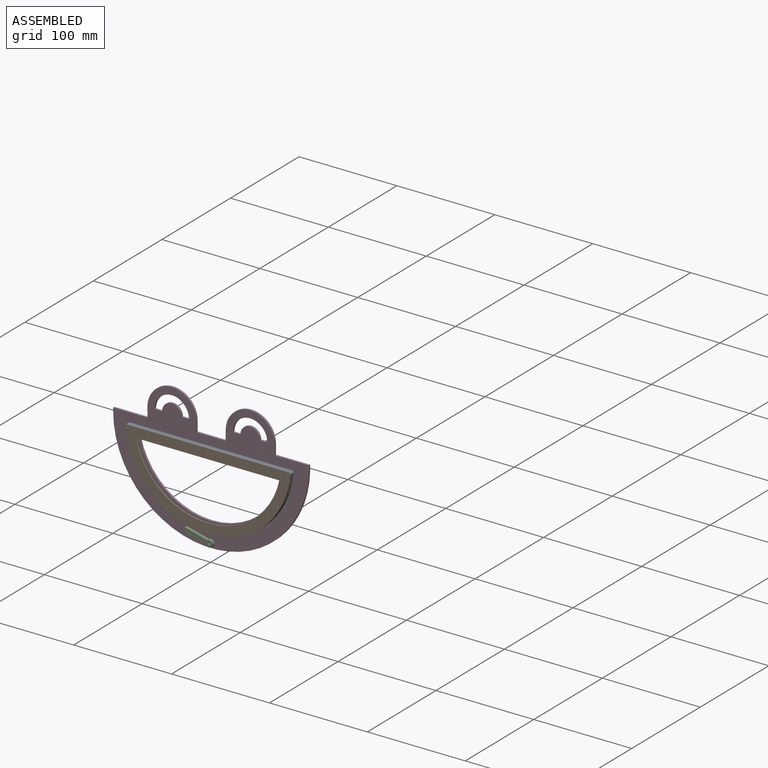
[diagram: assembled view]
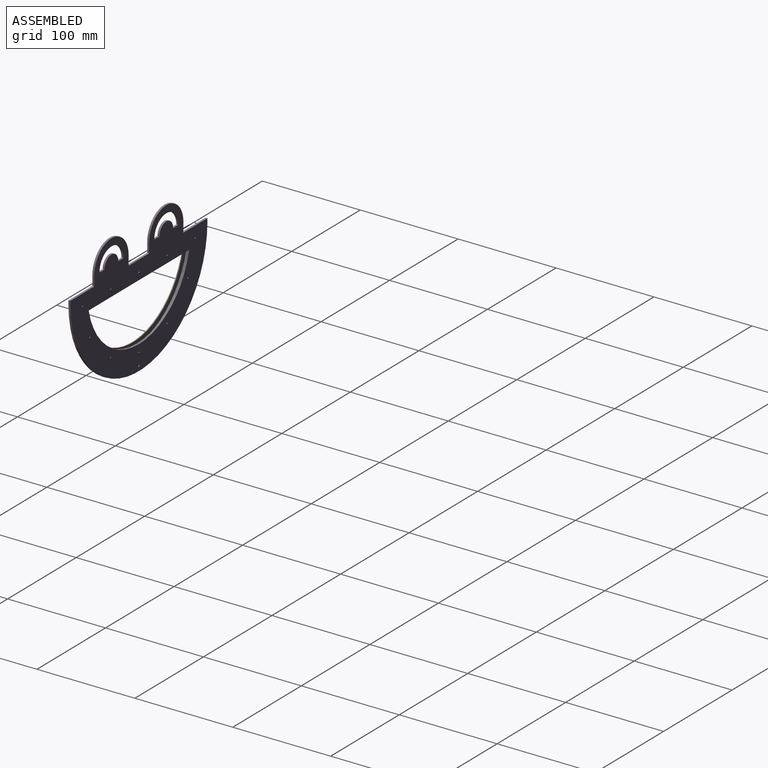
[diagram: assembled view, second angle]
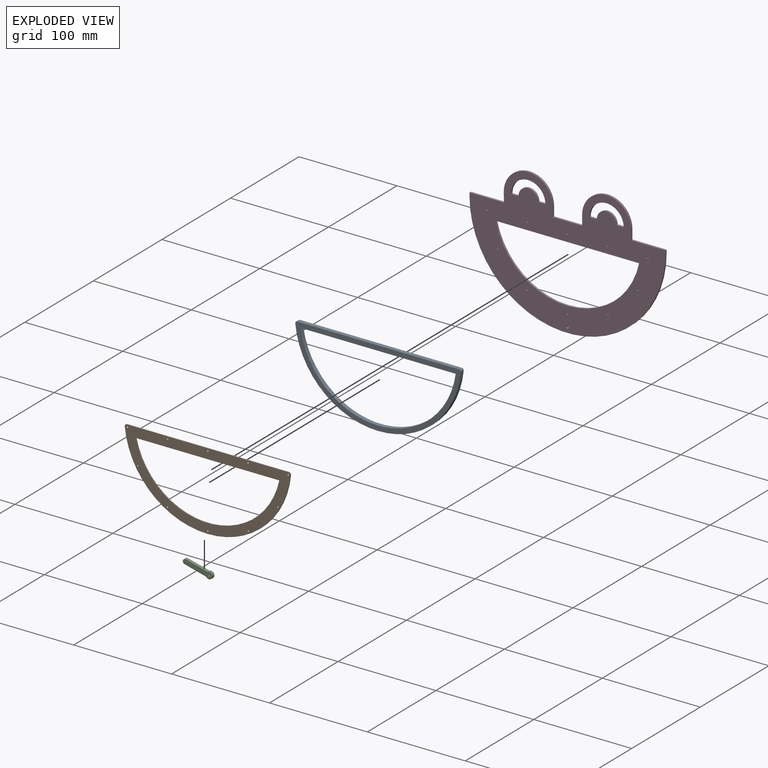
[diagram: exploded view]
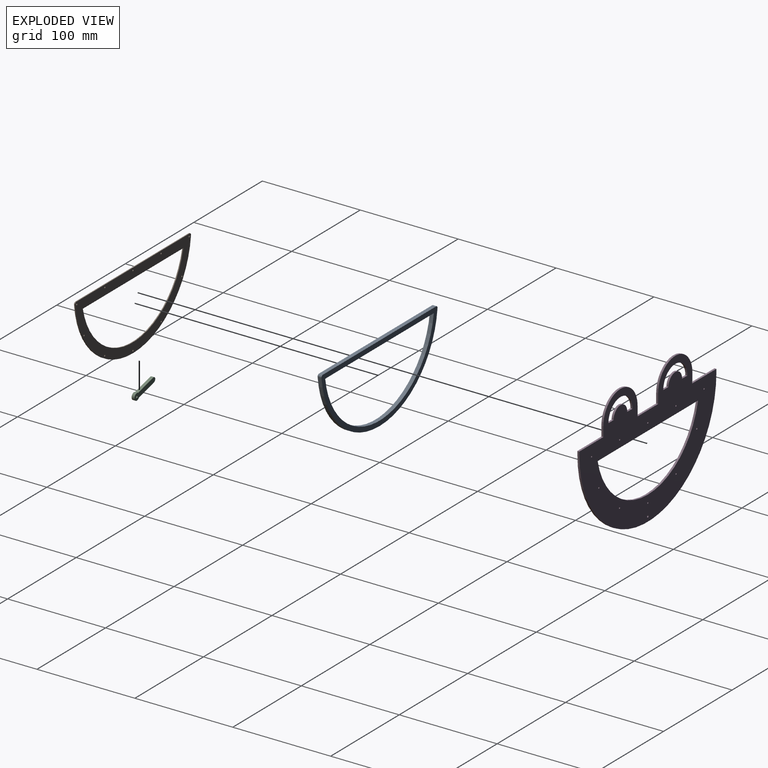
[diagram: exploded view, second angle]
ASSEMBLY  parts=4 mates=6
PART A: 8 faces, bbox 169.2x4x79 mm
  f0: plane 165.23x4mm, normal (0,0,1), area 660.9mm2, adj f4,f5,f6,f7
  f1: cylinder r=80mm len=158.48mm, axis (0,1,0), area 917mm2, adj f2,f4,f5
  f2: plane 158.48x4mm, normal (0,0,-1), area 633.9mm2, adj f1,f4,f5
  f3: cylinder r=85mm len=169.21mm, axis (0,1,0), area 1002.5mm2, adj f4,f5,f6,f7
  f4: plane 169.23x79mm, normal (0,-1,0), area 2029.1mm2, adj f0,f1,f2,f3,f6,f7
  f5: plane 169.23x79mm, normal (0,1,0), area 2029.1mm2, adj f0,f1,f2,f3,f6,f7
  f6: cylinder r=2mm len=4mm, axis (0,1,0), area 13.3mm2, adj f0,f3,f4,f5
  f7: cylinder r=2mm len=4mm, axis (0,1,0), area 13.3mm2, adj f0,f3,f4,f5
PART B: 18 faces, bbox 169.2x1x79 mm
  f0: plane 146.55x1mm, normal (0,0,-1), area 146.5mm2, adj f3,f4,f5
  f1: plane 165.23x1mm, normal (0,0,1), area 165.2mm2, adj f4,f5,f16,f17
  f2: cylinder r=85mm len=169.21mm, axis (0,1,0), area 250.6mm2, adj f4,f5,f16,f17
  f3: cylinder r=75mm len=146.55mm, axis (0,1,0), area 203.4mm2, adj f0,f4,f5
  f4: plane 169.23x79mm, normal (0,-1,0), area 3853.6mm2, adj f0,f1,f2,f3,f6,f7,f8,f9
  f5: plane 169.23x79mm, normal (0,1,0), area 3853.6mm2, adj f0,f1,f2,f3,f6,f7,f8,f9
  f6: cylinder r=0.8mm len=1.6mm, axis (0,-1,0), area 5mm2, adj f4,f5
  f7: cylinder r=0.8mm len=1.6mm, axis (0,-1,0), area 5mm2, adj f4,f5
  f8: cylinder r=0.8mm len=1.6mm, axis (0,-1,0), area 5mm2, adj f4,f5
  f9: cylinder r=0.8mm len=1.6mm, axis (0,-1,0), area 5mm2, adj f4,f5
  f10: cylinder r=0.8mm len=1.6mm, axis (0,-1,0), area 5mm2, adj f4,f5
  f11: cylinder r=0.8mm len=1.6mm, axis (0,-1,0), area 5mm2, adj f4,f5
  f12: cylinder r=0.8mm len=1.6mm, axis (0,-1,0), area 5mm2, adj f4,f5
  f13: cylinder r=0.8mm len=1.6mm, axis (0,-1,0), area 5mm2, adj f4,f5
  f14: cylinder r=0.8mm len=1.6mm, axis (0,-1,0), area 5mm2, adj f4,f5
  f15: cylinder r=0.8mm len=1.6mm, axis (0,-1,0), area 5mm2, adj f4,f5
  f16: cylinder r=2mm len=2.19mm, axis (0,1,0), area 3.3mm2, adj f1,f2,f4,f5
  f17: cylinder r=2mm len=2.19mm, axis (0,1,0), area 3.3mm2, adj f1,f2,f4,f5
PART C: 7 faces, bbox 30.2x3x12.2 mm
  f0: plane 21.84x5.61mm, normal (0.25,0,0.97), area 67.7mm2, adj f1,f3,f5,f6
  f1: cylinder r=2.5mm len=4.92mm, axis (0,1,0), area 23.6mm2, adj f0,f2,f5,f6
  f2: plane 21.84x5.61mm, normal (-0.25,0,-0.97), area 67.7mm2, adj f1,f3,f5,f6
  f3: cylinder r=3.5mm len=7mm, axis (0,1,0), area 49.3mm2, adj f0,f2,f5,f6
  f4: cylinder r=1mm len=3mm, axis (0,1,0), area 18.8mm2, adj f5,f6
  f5: plane 30.22x12.21mm, normal (0,-1,0), area 154.3mm2, adj f0,f1,f2,f3,f4
  f6: plane 30.22x12.21mm, normal (0,1,0), area 154.3mm2, adj f0,f1,f2,f3,f4
PART D: 35 faces, bbox 200x2x138 mm
  f0: plane 10x2mm, normal (1,0,0), area 20mm2, adj f1,f21,f22,f23
  f1: cylinder r=25mm len=50mm, axis (0,1,0), area 157.1mm2, adj f0,f2,f22,f23
  f2: plane 10x2mm, normal (-1,0,-0.02), area 20mm2, adj f1,f3,f22,f23
  f3: plane 35.2x2mm, normal (0,0,1), area 70.4mm2, adj f2,f4,f22,f23
  f4: plane 3x2mm, normal (-1,0,0), area 6mm2, adj f3,f5,f22,f23
  f5: cylinder r=100mm len=200mm, axis (0,1,0), area 628.3mm2, adj f4,f6,f22,f23
  f6: plane 3x2mm, normal (1,0,0), area 6mm2, adj f5,f7,f22,f23
  f7: plane 35x2mm, normal (0,0,1), area 70mm2, adj f6,f8,f22,f23
  f8: plane 10x2mm, normal (1,0,0), area 20mm2, adj f7,f9,f22,f23
  f9: cylinder r=25mm len=50mm, axis (0,1,0), area 157.1mm2, adj f8,f10,f22,f23
  f10: plane 10x2mm, normal (-1,0,0), area 20mm2, adj f9,f21,f22,f23
  f11: plane 7.5x2mm, normal (0,0,1), area 15mm2, adj f12,f18,f22,f23
  f12: cylinder r=17.5mm len=35mm, axis (0,1,0), area 110mm2, adj f11,f13,f22,f23
  f13: plane 7.5x2mm, normal (0,0,1), area 15mm2, adj f12,f18,f22,f23
  f14: plane 7.5x2mm, normal (0,0,1), area 15mm2, adj f15,f19,f22,f23
  f15: cylinder r=17.5mm len=35mm, axis (0,1,0), area 110mm2, adj f14,f16,f22,f23
  f16: plane 7.5x2mm, normal (0,0,1), area 15mm2, adj f15,f19,f22,f23
  f17: cylinder r=75mm len=146.55mm, axis (0,1,0), area 406.7mm2, adj f20,f22,f23
  f18: cylinder r=10mm len=20mm, axis (0,1,0), area 62.8mm2, adj f11,f13,f22,f23
  f19: cylinder r=10mm len=20mm, axis (0,1,0), area 62.8mm2, adj f14,f16,f22,f23
  f20: plane 146.55x2mm, normal (0,0,-1), area 293.1mm2, adj f17,f22,f23
  f21: plane 30x2mm, normal (0,0,1), area 60mm2, adj f0,f10,f22,f23
  f22: plane 200x138mm, normal (0,-1,0), area 12145.2mm2, adj f0,f1,f2,f3,f4,f5,f6,f7
  f23: plane 200x138mm, normal (0,1,0), area 12145.2mm2, adj f0,f1,f2,f3,f4,f5,f6,f7
  f24: cylinder r=0.8mm len=2mm, axis (0,-1,0), area 10.1mm2, adj f22,f23
  f25: cylinder r=0.8mm len=2mm, axis (0,-1,0), area 10.1mm2, adj f22,f23
  f26: cylinder r=0.8mm len=2mm, axis (0,-1,0), area 10.1mm2, adj f22,f23
  f27: cylinder r=0.8mm len=2mm, axis (0,-1,0), area 10.1mm2, adj f22,f23
  f28: cylinder r=0.8mm len=2mm, axis (0,-1,0), area 10.1mm2, adj f22,f23
  f29: cylinder r=0.8mm len=2mm, axis (0,-1,0), area 10.1mm2, adj f22,f23
  f30: cylinder r=0.8mm len=2mm, axis (0,-1,0), area 10.1mm2, adj f22,f23
  f31: cylinder r=0.8mm len=2mm, axis (0,-1,0), area 10.1mm2, adj f22,f23
  f32: cylinder r=0.8mm len=2mm, axis (0,-1,0), area 10.1mm2, adj f22,f23
  f33: cylinder r=0.8mm len=2mm, axis (0,-1,0), area 10.1mm2, adj f22,f23
  f34: cylinder r=1mm len=2mm, axis (0,-1,0), area 12.6mm2, adj f22,f23
PLACE A t=(-77.28,-32.06,-5.06)mm
PLACE B t=(-77.28,-36.06,-5.06)mm
PLACE C t=(-77.28,-32.06,-100.06)mm
PLACE D t=(-77.28,-30.06,-5.06)mm
MATE planar A.f4 <-> B.f5  axis (0,-1,0) through (-77.28,-36.06,-41.85)mm
MATE cylindrical A.f1 <-> D.f17  axis (0,1,0) through (-77.28,-34.06,-5.06)mm
MATE cylindrical B.f2 <-> A.f3  axis (0,1,0) through (-77.28,-36.56,-5.06)mm
MATE planar A.f5 <-> D.f26  axis (0,1,0) through (-77.28,-32.06,-41.85)mm
MATE cylindrical C.f4 <-> D.f34  axis (0,-1,0) through (-77.28,-35.06,-100.06)mm
MATE planar C.f6 <-> D.f34  axis (0,1,0) through (-88.54,-32.06,-97.17)mm
